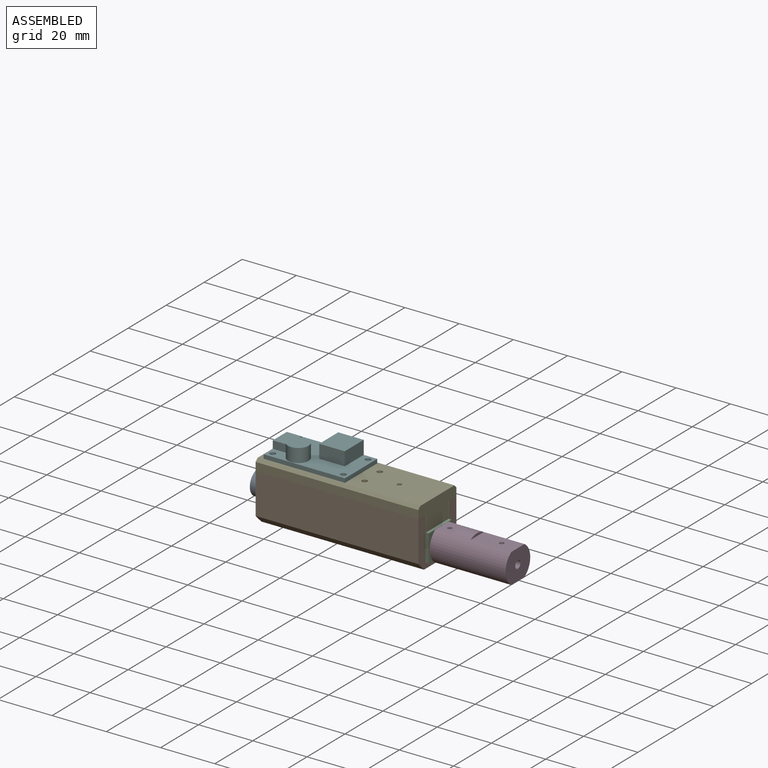
[diagram: assembled view]
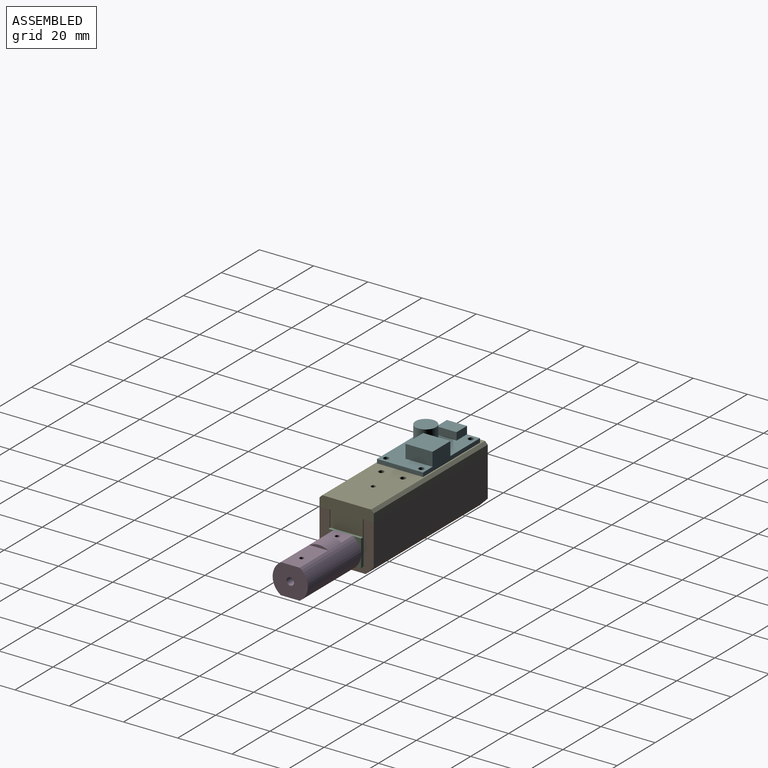
[diagram: assembled view, second angle]
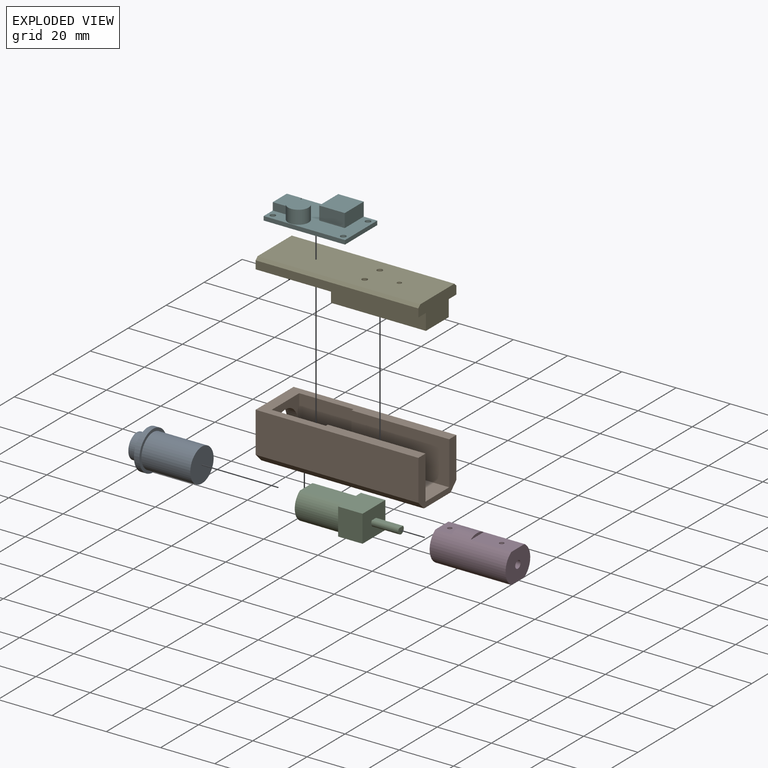
[diagram: exploded view]
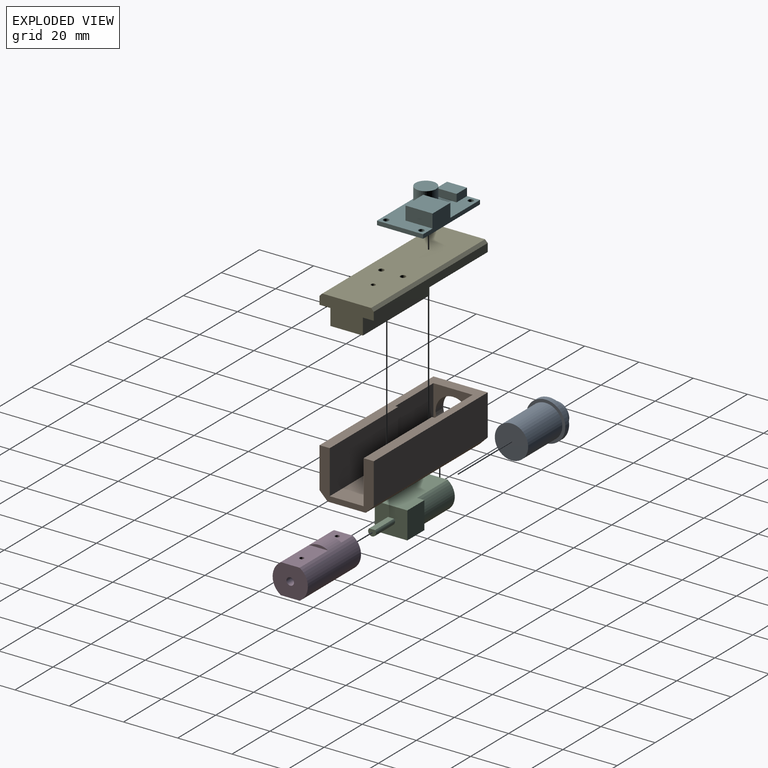
[diagram: exploded view, second angle]
ASSEMBLY  parts=6 mates=4
PART A: 7 faces, bbox 14.5x14.5x24 mm
  f0: cylinder r=7.25mm len=14.5mm, axis (0,0,-1), area 91.1mm2, adj f1,f2
  f1: plane 14.5x14.5mm, normal (0,0,1), area 101.5mm2, adj f0,f3
  f2: plane 14.5x14.5mm, normal (0,0,-1), area 46.3mm2, adj f0,f5
  f3: cylinder r=4.5mm len=9mm, axis (0,0,-1), area 113.1mm2, adj f1,f4
  f4: plane 9x9mm, normal (0,0,1), area 63.6mm2, adj f3
  f5: cylinder r=6.15mm len=18mm, axis (0,0,1), area 695.5mm2, adj f2,f6
  f6: plane 12.3x12.3mm, normal (0,0,-1), area 118.8mm2, adj f5
PART B: 21 faces, bbox 20x60x18 mm
  f0: plane 36x16mm, normal (1,0,0), area 576mm2, adj f2,f4,f9,f12
  f1: plane 36x16mm, normal (-1,0,0), area 576mm2, adj f2,f4,f9,f17
  f2: plane 60x20mm, normal (0,0,1), area 460mm2, adj f0,f1,f3,f4,f5,f6,f8,f12
  f3: plane 60x15mm, normal (1,0,0), area 900mm2, adj f2,f4,f6,f20
  f4: plane 20x18mm, normal (0,1,0), area 151mm2, adj f0,f1,f2,f3,f5,f7,f9,f19
  f5: plane 60x15mm, normal (-1,0,0), area 900mm2, adj f2,f4,f6,f19
  f6: plane 20x18mm, normal (0,-1,0), area 222.3mm2, adj f2,f3,f5,f7,f10,f19,f20
  f7: plane 60x14mm, normal (0,0,-1), area 840mm2, adj f4,f6,f19,f20
  f8: plane 17x14.5mm, normal (0,1,0), area 105.3mm2, adj f2,f9,f10,f11,f13,f14,f15,f16
  f9: plane 56x12.5mm, normal (0,0,1), area 700mm2, adj f0,f1,f4,f8,f11,f15
  f10: cylinder r=6.4mm len=12.8mm, axis (0,-1,0), area 160.8mm2, adj f6,f8
  f11: plane 20x1mm, normal (-1,0,0), area 20mm2, adj f8,f9,f12,f14
  f12: plane 17x1mm, normal (0,-1,0), area 17mm2, adj f0,f2,f11,f13,f14
  f13: plane 20x17mm, normal (1,0,0), area 340mm2, adj f2,f8,f12,f14
  f14: plane 20x1mm, normal (0,0,1), area 20mm2, adj f8,f11,f12,f13
  f15: plane 20x1mm, normal (1,0,0), area 20mm2, adj f8,f9,f17,f18
  f16: plane 20x17mm, normal (-1,0,0), area 340mm2, adj f2,f8,f17,f18
  f17: plane 17x1mm, normal (0,-1,0), area 17mm2, adj f1,f2,f15,f16,f18
  f18: plane 20x1mm, normal (0,0,1), area 20mm2, adj f8,f15,f16,f17
  f19: plane 60x3mm, normal (-0.71,0,-0.71), area 254.6mm2, adj f4,f5,f6,f7
  f20: plane 60x3mm, normal (0.71,0,-0.71), area 254.6mm2, adj f3,f4,f6,f7
PART C: 15 faces, bbox 35x12x10 mm
  f0: plane 25x12mm, normal (0,0,1), area 214.1mm2, adj f1,f3,f4,f5,f8,f9,f10,f11
  f1: cylinder r=6mm len=16mm, axis (-1,0,0), area 189.1mm2, adj f0,f2,f4,f5,f6
  f2: plane 25x12mm, normal (0,0,-1), area 214.1mm2, adj f1,f3,f4,f6,f7,f9,f10,f11
  f3: cylinder r=6mm len=16mm, axis (-1,0,0), area 189.1mm2, adj f0,f2,f4,f7,f8
  f4: plane 12x10mm, normal (-1,0,0), area 104.1mm2, adj f0,f1,f2,f3
  f5: plane 5x2.68mm, normal (-1,0,0), area 4mm2, adj f0,f1,f10
  f6: plane 5x2.68mm, normal (-1,0,0), area 4mm2, adj f1,f2,f10
  f7: plane 5x2.68mm, normal (-1,0,0), area 4mm2, adj f2,f3,f9
  f8: plane 5x2.68mm, normal (-1,0,0), area 4mm2, adj f0,f3,f9
  f9: plane 10x9mm, normal (0,1,0), area 90mm2, adj f0,f2,f7,f8,f11
  f10: plane 10x9mm, normal (0,-1,0), area 90mm2, adj f0,f2,f5,f6,f11
  f11: plane 12x10mm, normal (1,0,0), area 114.2mm2, adj f0,f2,f9,f10,f12,f13
  f12: plane 10x2.19mm, normal (0,0,1), area 21.9mm2, adj f11,f13,f14
  f13: cylinder r=1.45mm len=10mm, axis (-1,0,0), area 66.3mm2, adj f11,f12,f14
  f14: plane 2.9x2.4mm, normal (1,0,0), area 5.8mm2, adj f12,f13
PART D: 17 faces, bbox 28x13x13 mm
  f0: plane 13x11mm, normal (-1,0,0), area 117.2mm2, adj f2,f10,f11,f13
  f1: plane 13x12mm, normal (1,0,0), area 118.7mm2, adj f2,f3,f4,f6
  f2: cylinder r=6.5mm len=28mm, axis (-1,0,0), area 878.5mm2, adj f0,f1,f6,f7,f9,f11,f12,f13
  f3: plane 10x1.8mm, normal (0,0,1), area 16mm2, adj f1,f4,f5,f8
  f4: cylinder r=1.75mm len=10mm, axis (1,0,0), area 88.9mm2, adj f1,f3,f5,f8,f9
  f5: plane 3.5x3.25mm, normal (1,0,0), area 3.2mm2, adj f3,f4,f10
  f6: plane 6.93x6mm, normal (0,0,-1), area 39.6mm2, adj f1,f2,f7,f8
  f7: plane 6.93x1mm, normal (1,0,0), area 4.7mm2, adj f2,f6
  f8: cylinder r=0.8mm len=4.04mm, axis (0,0,-1), area 20.1mm2, adj f3,f4,f6
  f9: cylinder r=0.8mm len=5.04mm, axis (0,0,-1), area 24.3mm2, adj f2,f4
  f10: cylinder r=1.4mm len=18mm, axis (-1,0,0), area 154.1mm2, adj f0,f5,f15,f16
  f11: plane 15x6.93mm, normal (0,0,-1), area 101.9mm2, adj f0,f2,f12,f16
  f12: plane 6.93x1mm, normal (-1,0,0), area 4.7mm2, adj f2,f11
  f13: plane 15x6.93mm, normal (0,0,1), area 101.9mm2, adj f0,f2,f14,f15
  f14: plane 6.93x1mm, normal (-1,0,0), area 4.7mm2, adj f2,f13
  f15: cylinder r=0.8mm len=4.38mm, axis (0,0,-1), area 21.2mm2, adj f10,f13
  f16: cylinder r=0.8mm len=4.38mm, axis (0,0,-1), area 21.2mm2, adj f10,f11
PART E: 15 faces, bbox 20x60x10 mm
  f0: plane 20x10mm, normal (0,1,0), area 151mm2, adj f1,f3,f4,f5,f6,f7,f8,f10
  f1: plane 60x3mm, normal (-1,0,0), area 180mm2, adj f0,f2,f5,f6
  f2: plane 20x4mm, normal (0,-1,0), area 79mm2, adj f1,f3,f4,f5,f6,f7
  f3: plane 60x3mm, normal (1,0,0), area 180mm2, adj f0,f2,f5,f7
  f4: plane 60x18mm, normal (0,0,1), area 1071.7mm2, adj f0,f2,f6,f7,f12,f13,f14
  f5: plane 60x20mm, normal (0,0,-1), area 780mm2, adj f0,f1,f2,f3,f8,f9,f10
  f6: plane 60x1mm, normal (-0.71,0,0.71), area 84.9mm2, adj f0,f1,f2,f4
  f7: plane 60x1mm, normal (0.71,0,0.71), area 84.9mm2, adj f0,f2,f3,f4
  f8: plane 35x6mm, normal (1,0,0), area 210mm2, adj f0,f5,f9,f11
  f9: plane 12x6mm, normal (0,-1,0), area 72mm2, adj f5,f8,f10,f11
  f10: plane 35x6mm, normal (-1,0,0), area 210mm2, adj f0,f5,f9,f11
  f11: plane 35x12mm, normal (0,0,-1), area 411.7mm2, adj f0,f8,f9,f10,f12,f13,f14
  f12: cylinder r=1mm len=10mm, axis (0,0,1), area 62.8mm2, adj f4,f11
  f13: cylinder r=1mm len=10mm, axis (0,0,1), area 62.8mm2, adj f4,f11
  f14: cylinder r=0.8mm len=10mm, axis (0,0,1), area 50.3mm2, adj f4,f11
PART F: 20 faces, bbox 17x30x6.5 mm
  f0: plane 30x17mm, normal (0,0,1), area 317.4mm2, adj f1,f2,f3,f4,f6,f7,f8,f9
  f1: plane 17x1.5mm, normal (0,1,0), area 25.5mm2, adj f0,f2,f4,f5
  f2: plane 30x6.5mm, normal (-1,0,0), area 92mm2, adj f0,f1,f3,f5,f10,f11,f13
  f3: plane 17x4.3mm, normal (0,-1,0), area 46.2mm2, adj f0,f2,f4,f5,f14,f16,f17
  f4: plane 30x1.5mm, normal (1,0,0), area 45mm2, adj f0,f1,f3,f5
  f5: plane 30x17mm, normal (0,0,-1), area 497.4mm2, adj f1,f2,f3,f4,f6,f7,f8,f9
  f6: cylinder r=1mm len=2mm, axis (0,0,1), area 9.4mm2, adj f0,f5
  f7: cylinder r=1mm len=2mm, axis (0,0,1), area 9.4mm2, adj f0,f5
  f8: cylinder r=1mm len=2mm, axis (0,0,1), area 9.4mm2, adj f0,f5
  f9: cylinder r=1mm len=2mm, axis (0,0,1), area 9.4mm2, adj f0,f5
  f10: plane 10x5mm, normal (0,1,0), area 50mm2, adj f0,f2,f12,f13
  f11: plane 10x5mm, normal (0,-1,0), area 50mm2, adj f0,f2,f12,f13
  f12: plane 9.4x5mm, normal (1,0,0), area 47mm2, adj f0,f10,f11,f13
  f13: plane 10x9.4mm, normal (0,0,1), area 94mm2, adj f2,f10,f11,f12
  f14: plane 5.5x2.8mm, normal (1,0,0), area 15.4mm2, adj f0,f3,f15,f17
  f15: plane 7.4x2.8mm, normal (0,1,0), area 20.7mm2, adj f0,f14,f16,f17
  f16: plane 5.5x2.8mm, normal (-1,0,0), area 15.4mm2, adj f0,f3,f15,f17
  f17: plane 7.4x5.5mm, normal (0,0,1), area 40.7mm2, adj f3,f14,f15,f16
  f18: cylinder r=3.8mm len=7.6mm, axis (0,0,-1), area 119.4mm2, adj f0,f19
  f19: plane 7.6x7.6mm, normal (0,0,1), area 45.4mm2, adj f18
PLACE A rot(axis=(0,-1,0),90deg) t=(-25.88,-15.22,7.01)mm
PLACE B rot(axis=(0,0,-1),90deg) t=(17.9,-5.81,-5.82)mm
PLACE C rot(axis=(0,0,1),0deg) t=(10.14,-19.84,0.27)mm
PLACE D rot(axis=(0,-1,0),180deg) t=(63.83,-5.84,1.18)mm
PLACE E rot(axis=(0,0,-1),90deg) t=(15.06,0.24,12.18)mm
PLACE F rot(axis=(0,0,-1),90deg) t=(7.11,-7.43,16.18)mm
MATE planar F.f5 <-> E.f4  axis (0,0,-1) through (-8.98,-5.84,16.18)mm
MATE slider D.f4 <-> C.f13  axis (-1,0,0) through (35.83,-5.84,1.18)mm
MATE fastened A.f0 <-> B.f10  axis (-1,0,0) through (-25.88,-5.84,3.18)mm
MATE fastened E.f5 <-> B.f2  axis (0,0,-1) through (-25.88,-15.84,12.18)mm
